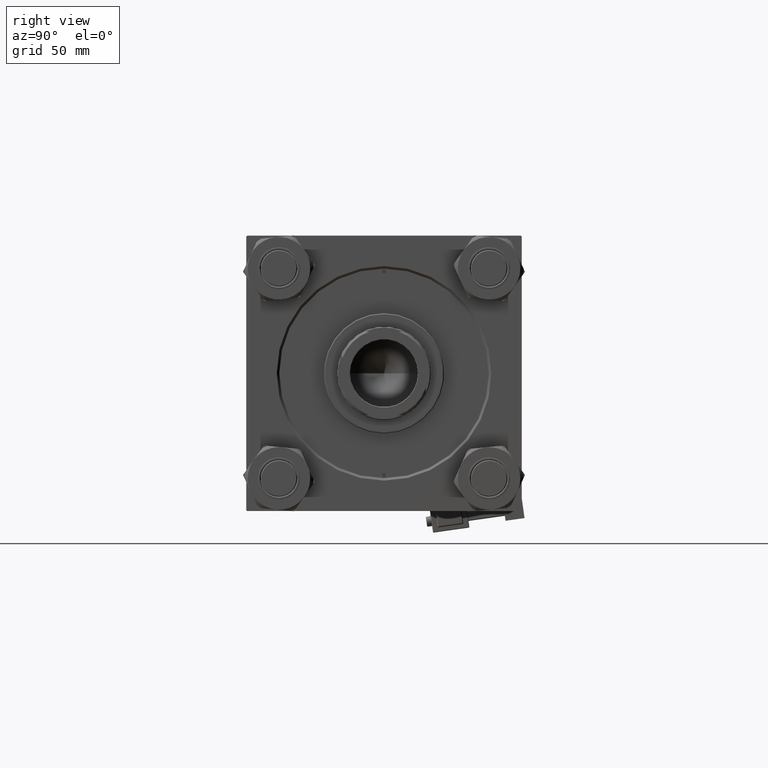
[diagram: clean part render]
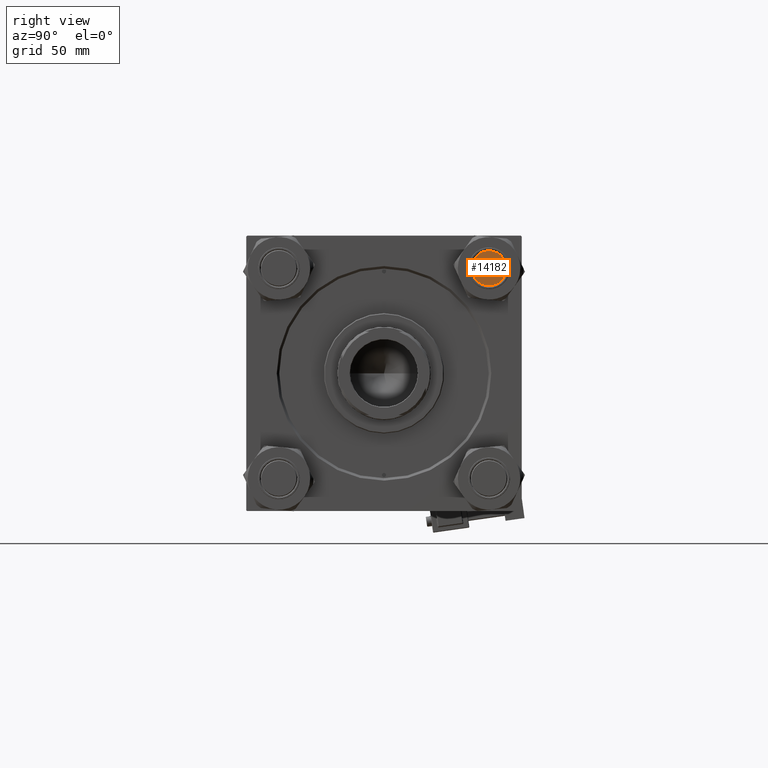
[diagram: same view with one face highlighted and labeled with its STEP entity id]
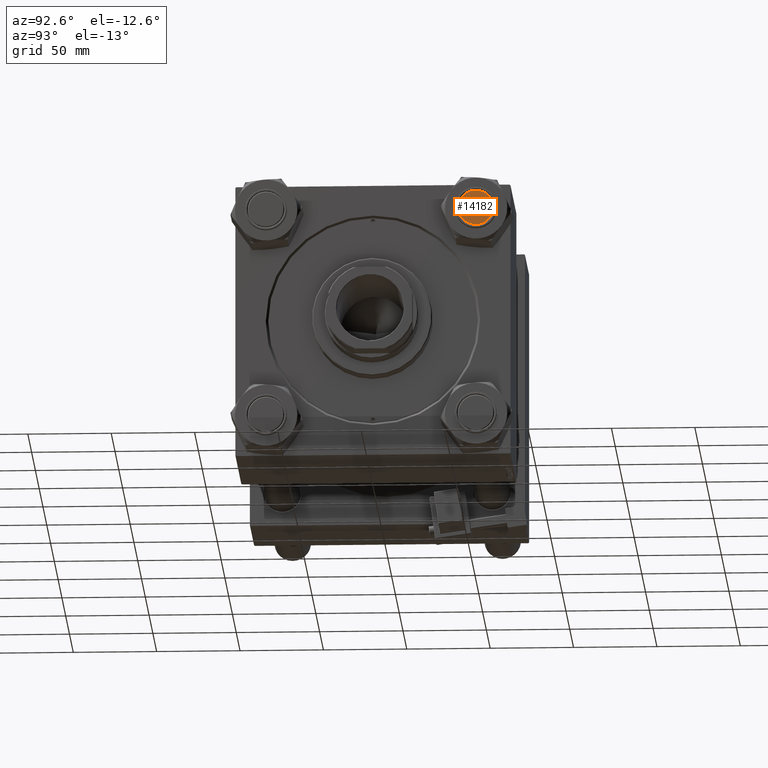
[diagram: same view with one face highlighted and labeled with its STEP entity id]
A machine part, right view. The second image highlights one B-rep face of the part: STEP entity #14182.
A second angle (auxiliary view) of the same face is appended — the face is thin or edge-on in the first view.
In plain terms, the highlighted planar face has unit normal (1, 0, 0).
Its self-contained STEP definition (entity closure, byte-faithful):
#1005 = CIRCLE ( 'NONE', #51977, 10.50000000000000888 ) ;
#6201 = EDGE_CURVE ( 'NONE', #48226, #14323, #32866, .T. ) ;
#12209 = DIRECTION ( 'NONE',  ( 1.000000000000000000, 0.000000000000000000, 0.000000000000000000 ) ) ;
#14182 = ADVANCED_FACE ( 'NONE', ( #27022 ), #42965, .T. ) ;
#14323 = VERTEX_POINT ( 'NONE', #48571 ) ;
#24416 = ORIENTED_EDGE ( 'NONE', *, *, #50304, .T. ) ;
#25531 = AXIS2_PLACEMENT_3D ( 'NONE', #50690, #42195, #43229 ) ;
#27022 = FACE_OUTER_BOUND ( 'NONE', #29990, .T. ) ;
#29162 = DIRECTION ( 'NONE',  ( 0.000000000000000000, 0.000000000000000000, 1.000000000000000000 ) ) ;
#29990 = EDGE_LOOP ( 'NONE', ( #24416, #50593 ) ) ;
#32461 = DIRECTION ( 'NONE',  ( 0.000000000000000000, 0.000000000000000000, 1.000000000000000000 ) ) ;
#32866 = CIRCLE ( 'NONE', #44736, 10.50000000000000888 ) ;
#36892 = DIRECTION ( 'NONE',  ( 1.000000000000000000, 0.000000000000000000, 0.000000000000000000 ) ) ;
#41909 = CARTESIAN_POINT ( 'NONE',  ( 0.000000000000000000, 0.000000000000000000, 354.0000000000000000 ) ) ;
#42195 = DIRECTION ( 'NONE',  ( 0.000000000000000000, 0.000000000000000000, 1.000000000000000000 ) ) ;
#42965 = PLANE ( 'NONE',  #25531 ) ;
#43229 = DIRECTION ( 'NONE',  ( 1.000000000000000000, 0.000000000000000000, -0.000000000000000000 ) ) ;
#44736 = AXIS2_PLACEMENT_3D ( 'NONE', #48678, #32461, #12209 ) ;
#46329 = CARTESIAN_POINT ( 'NONE',  ( 10.50000000000000888, 1.316495309083405209E-15, 354.0000000000000000 ) ) ;
#48226 = VERTEX_POINT ( 'NONE', #46329 ) ;
#48571 = CARTESIAN_POINT ( 'NONE',  ( -10.50000000000000888, 0.000000000000000000, 354.0000000000000000 ) ) ;
#48678 = CARTESIAN_POINT ( 'NONE',  ( 0.000000000000000000, 0.000000000000000000, 354.0000000000000000 ) ) ;
#50304 = EDGE_CURVE ( 'NONE', #14323, #48226, #1005, .T. ) ;
#50593 = ORIENTED_EDGE ( 'NONE', *, *, #6201, .T. ) ;
#50690 = CARTESIAN_POINT ( 'NONE',  ( 0.000000000000000000, 0.000000000000000000, 354.0000000000000000 ) ) ;
#51977 = AXIS2_PLACEMENT_3D ( 'NONE', #41909, #29162, #36892 ) ;